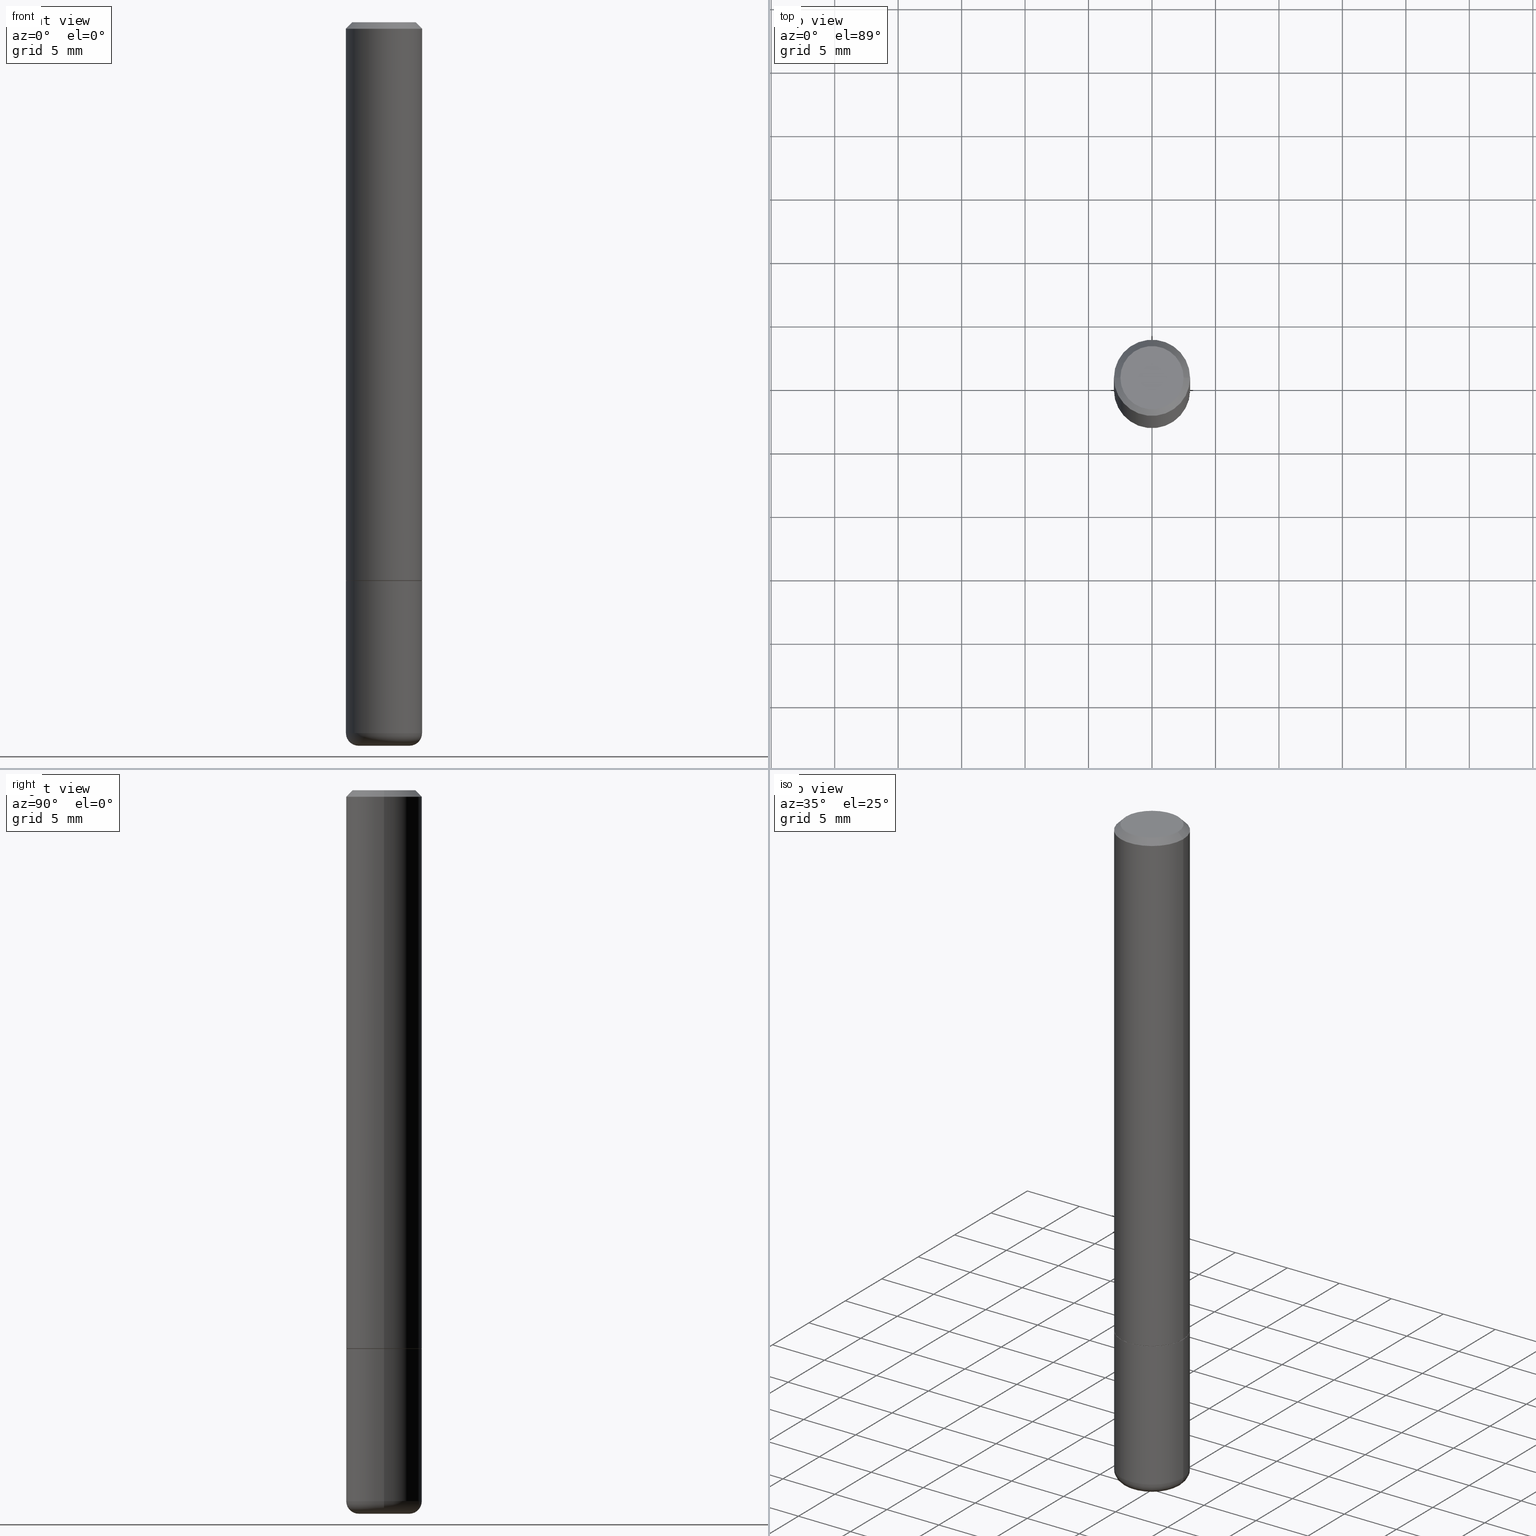
[diagram: canonical four-view strip — front | top / right | iso, engineering-drawing reading convention]
A machine part, canonical four-view strip (front | top / right | iso — engineering-drawing reading convention). The complete STEP part file that produces these views, byte-faithful:
ISO-10303-21;
HEADER;
FILE_DESCRIPTION (( 'STEP AP203' ),
    '1' );
FILE_NAME ('48002.STEP',
    '2024-03-06T19:44:19',
    ( '' ),
    ( '' ),
    'SwSTEP 2.0',
    'SolidWorks 2023',
    '' );
FILE_SCHEMA (( 'CONFIG_CONTROL_DESIGN' ));
ENDSEC;

DATA;
#1 = DIRECTION ( 'NONE',  ( 1.000000000000000000, -6.982962677686264344E-15, 0.000000000000000000 ) ) ;
#2 = ORIENTED_EDGE ( 'NONE', *, *, #193, .F. ) ;
#3 = EDGE_CURVE ( 'NONE', #345, #130, #348, .T. ) ;
#4 = PLANE ( 'NONE',  #411 ) ;
#5 = LINE ( 'NONE', #175, #372 ) ;
#6 = CARTESIAN_POINT ( 'NONE',  ( 4.890937612370292426E-31, -6.982962677686317493E-17, -0.02000000000000007674 ) ) ;
#7 = VERTEX_POINT ( 'NONE', #319 ) ;
#8 = PERSON_AND_ORGANIZATION_ROLE ( 'design_owner' ) ;
#9 = DIRECTION ( 'NONE',  ( -2.445468806185136597E-29, 3.491481338843145583E-15, 1.000000000000000000 ) ) ;
#10 = DIRECTION ( 'NONE',  ( -2.445468806185136597E-29, 3.491481338843145583E-15, 1.000000000000000000 ) ) ;
#11 = ORIENTED_EDGE ( 'NONE', *, *, #136, .F. ) ;
#12 = DATE_AND_TIME ( #93, #203 ) ;
#13 = LINE ( 'NONE', #300, #256 ) ;
#14 = ORIENTED_EDGE ( 'NONE', *, *, #84, .T. ) ;
#15 = DATE_AND_TIME ( #405, #176 ) ;
#16 = PERSON_AND_ORGANIZATION ( #274, #335 ) ;
#17 = DATE_AND_TIME ( #147, #407 ) ;
#18 = MANIFOLD_SOLID_BREP ( 'Body-Move/Copy2[1]', #77 ) ;
#19 = AXIS2_PLACEMENT_3D ( 'NONE', #389, #297, #129 ) ;
#20 = EDGE_CURVE ( 'NONE', #294, #107, #399, .T. ) ;
#21 = EDGE_CURVE ( 'NONE', #23, #294, #33, .T. ) ;
#22 = PERSON_AND_ORGANIZATION ( #274, #335 ) ;
#23 = VERTEX_POINT ( 'NONE', #414 ) ;
#24 = CIRCLE ( 'NONE', #238, 0.1181000000000002742 ) ;
#25 = AXIS2_PLACEMENT_3D ( 'NONE', #271, #197, #142 ) ;
#26 = DIRECTION ( 'NONE',  ( -2.445468806185136597E-29, 3.491481338843145583E-15, 1.000000000000000000 ) ) ;
#27 = PLANE ( 'NONE',  #55 ) ;
#28 = VECTOR ( 'NONE', #394, 39.37007874015748143 ) ;
#29 = VERTEX_POINT ( 'NONE', #253 ) ;
#30 = ADVANCED_FACE ( 'NONE', ( #54 ), #149, .T. ) ;
#31 = CARTESIAN_POINT ( 'NONE',  ( -0.1181000000000000383, 7.548582654578851616E-16, -0.02000000000000007674 ) ) ;
#32 = FACE_OUTER_BOUND ( 'NONE', #62, .T. ) ;
#33 = LINE ( 'NONE', #352, #280 ) ;
#34 = ORIENTED_EDGE ( 'NONE', *, *, #276, .F. ) ;
#35 = CARTESIAN_POINT ( 'NONE',  ( 0.1170999999999999958, -6.865998052835041749E-15, -1.732299999999999729 ) ) ;
#36 = CARTESIAN_POINT ( 'NONE',  ( -0.1180999999999999966, -6.033830044580054299E-15, -1.732299999999999951 ) ) ;
#37 = DIRECTION ( 'NONE',  ( 1.000000000000000000, -6.982962677686266711E-15, 0.000000000000000000 ) ) ;
#38 = ORIENTED_EDGE ( 'NONE', *, *, #222, .F. ) ;
#39 = CARTESIAN_POINT ( 'NONE',  ( 0.000000000000000000, 0.000000000000000000, 0.000000000000000000 ) ) ;
#40 = CARTESIAN_POINT ( 'NONE',  ( 5.391525076996371277E-29, -7.697668907747483125E-15, -2.204700000000000326 ) ) ;
#41 = DIRECTION ( 'NONE',  ( 1.000000000000000000, -6.982962677686264344E-15, 0.000000000000000000 ) ) ;
#42 = ADVANCED_BREP_SHAPE_REPRESENTATION ( '48002', ( #18, #207, #116 ), #151 ) ;
#43 = DESIGN_CONTEXT ( 'detailed design', #224, 'design' ) ;
#44 = ORIENTED_EDGE ( 'NONE', *, *, #408, .F. ) ;
#45 = ORIENTED_EDGE ( 'NONE', *, *, #314, .F. ) ;
#46 = APPLICATION_PROTOCOL_DEFINITION ( 'international standard', 'config_control_design', 1994, #83 ) ;
#47 = CARTESIAN_POINT ( 'NONE',  ( -0.1180999999999998995, -6.858517936814806506E-15, -2.204700000000000326 ) ) ;
#48 = EDGE_LOOP ( 'NONE', ( #183, #161 ) ) ;
#49 = EDGE_CURVE ( 'NONE', #107, #294, #24, .T. ) ;
#50 = ORIENTED_EDGE ( 'NONE', *, *, #343, .F. ) ;
#51 = APPROVAL ( #111, 'UNSPECIFIED' ) ;
#52 = COORDINATED_UNIVERSAL_TIME_OFFSET ( 5, 0, .BEHIND. ) ;
#53 = AXIS2_PLACEMENT_3D ( 'NONE', #66, #367, #99 ) ;
#54 = FACE_OUTER_BOUND ( 'NONE', #143, .T. ) ;
#55 = AXIS2_PLACEMENT_3D ( 'NONE', #379, #158, #88 ) ;
#56 = CARTESIAN_POINT ( 'NONE',  ( -0.1181000000000000383, 7.548582654578851616E-16, -0.02000000000000007674 ) ) ;
#57 = CC_DESIGN_PERSON_AND_ORGANIZATION_ASSIGNMENT ( #386, #8, ( #241 ) ) ;
#58 = ORIENTED_EDGE ( 'NONE', *, *, #213, .F. ) ;
#59 = AXIS2_PLACEMENT_3D ( 'NONE', #227, #71, #196 ) ;
#60 = LINE ( 'NONE', #404, #275 ) ;
#61 = DIRECTION ( 'NONE',  ( 1.000000000000000000, -6.982962677686265133E-15, 0.000000000000000000 ) ) ;
#62 = EDGE_LOOP ( 'NONE', ( #390, #249, #316, #11 ) ) ;
#63 = EDGE_CURVE ( 'NONE', #370, #336, #202, .T. ) ;
#64 = LENGTH_MEASURE_WITH_UNIT ( LENGTH_MEASURE( 0.02539999999999999897 ), #122 );
#65 = CARTESIAN_POINT ( 'NONE',  ( 0.000000000000000000, 0.000000000000000000, 0.000000000000000000 ) ) ;
#66 = CARTESIAN_POINT ( 'NONE',  ( 6.850286386810210746E-16, 0.09809999999999977072, -2.251302258627504304E-16 ) ) ;
#67 = CC_DESIGN_APPROVAL ( #252, ( #403 ) ) ;
#68 = CARTESIAN_POINT ( 'NONE',  ( 4.236285612954512392E-29, -6.048293123277981078E-15, -1.732299999999999951 ) ) ;
#69 = DIRECTION ( 'NONE',  ( 1.000000000000000000, -6.982962677686266711E-15, 4.884890577880259924E-29 ) ) ;
#70 = FACE_OUTER_BOUND ( 'NONE', #159, .T. ) ;
#71 = DIRECTION ( 'NONE',  ( -2.445468806185136597E-29, 3.491481338843145583E-15, 1.000000000000000000 ) ) ;
#72 = CARTESIAN_POINT ( 'NONE',  ( 5.487876547960064752E-29, -7.835233272497900762E-15, -2.244099999999999540 ) ) ;
#73 = EDGE_LOOP ( 'NONE', ( #186, #306, #45, #195 ) ) ;
#74 = CIRCLE ( 'NONE', #392, 0.1170999999999999958 ) ;
#75 = EDGE_CURVE ( 'NONE', #130, #29, #378, .T. ) ;
#76 = APPROVAL_ROLE ( '' ) ;
#77 = CLOSED_SHELL ( 'NONE', ( #168, #272, #104, #413, #283, #380 ) ) ;
#78 = CIRCLE ( 'NONE', #59, 0.07870000000000000606 ) ;
#79 = CARTESIAN_POINT ( 'NONE',  ( 4.236285612954511832E-29, -6.048293123277980289E-15, -1.732299999999999729 ) ) ;
#80 = APPROVAL ( #402, 'UNSPECIFIED' ) ;
#81 = CIRCLE ( 'NONE', #217, 0.1181000000000000383 ) ;
#82 = ORIENTED_EDGE ( 'NONE', *, *, #311, .F. ) ;
#83 = APPLICATION_CONTEXT ( 'configuration controlled 3d designs of mechanical parts and assemblies' ) ;
#84 = EDGE_CURVE ( 'NONE', #345, #89, #220, .T. ) ;
#85 = CARTESIAN_POINT ( 'NONE',  ( 0.1181000000000000383, -8.800544403136813305E-16, -0.02000000000000007674 ) ) ;
#86 = ORIENTED_EDGE ( 'NONE', *, *, #136, .T. ) ;
#87 = ORIENTED_EDGE ( 'NONE', *, *, #177, .F. ) ;
#88 = DIRECTION ( 'NONE',  ( -1.000000000000000000, 6.982962677686265922E-15, -4.876176775795935793E-29 ) ) ;
#89 = VERTEX_POINT ( 'NONE', #31 ) ;
#90 = CARTESIAN_POINT ( 'NONE',  ( 0.1180999999999998995, -8.522356799982231388E-15, -2.204700000000000326 ) ) ;
#91 = CARTESIAN_POINT ( 'NONE',  ( 5.391525076996371277E-29, -7.697668907747483125E-15, -2.204700000000000326 ) ) ;
#92 = ORIENTED_EDGE ( 'NONE', *, *, #84, .F. ) ;
#93 = CALENDAR_DATE ( 2024, 6, 3 ) ;
#94 = DIRECTION ( 'NONE',  ( 2.445468806185136597E-29, -3.491481338843145583E-15, -1.000000000000000000 ) ) ;
#95 = DIRECTION ( 'NONE',  ( -1.000000000000000000, 6.982962677686266711E-15, 0.000000000000000000 ) ) ;
#96 = EDGE_LOOP ( 'NONE', ( #44, #139 ) ) ;
#97 = COORDINATED_UNIVERSAL_TIME_OFFSET ( 5, 0, .BEHIND. ) ;
#98 = DIRECTION ( 'NONE',  ( -2.445468806185136597E-29, 3.491481338843145583E-15, 1.000000000000000000 ) ) ;
#99 = DIRECTION ( 'NONE',  ( -1.000000000000000000, 6.982962677686265922E-15, -4.876176775795935793E-29 ) ) ;
#100 = CIRCLE ( 'NONE', #214, 0.03939999999999978936 ) ;
#101 = PRODUCT_DEFINITION_FORMATION_WITH_SPECIFIED_SOURCE ( 'ANY', '', #241, .NOT_KNOWN. ) ;
#102 = FACE_OUTER_BOUND ( 'NONE', #215, .T. ) ;
#103 = DIRECTION ( 'NONE',  ( 1.000000000000000000, -6.982962677686265133E-15, 0.000000000000000000 ) ) ;
#104 = ADVANCED_FACE ( 'NONE', ( #315 ), #27, .F. ) ;
#105 = ORIENTED_EDGE ( 'NONE', *, *, #337, .T. ) ;
#106 =( CONVERSION_BASED_UNIT ( 'INCH', #64 ) LENGTH_UNIT ( ) NAMED_UNIT ( #123 ) );
#107 = VERTEX_POINT ( 'NONE', #286 ) ;
#108 = SHAPE_DEFINITION_REPRESENTATION ( #212, #42 ) ;
#109 = CIRCLE ( 'NONE', #19, 0.1180999999999999966 ) ;
#110 = EDGE_CURVE ( 'NONE', #294, #89, #60, .T. ) ;
#111 = APPROVAL_STATUS ( 'not_yet_approved' ) ;
#112 = AXIS2_PLACEMENT_3D ( 'NONE', #254, #200, #396 ) ;
#113 = EDGE_CURVE ( 'NONE', #23, #383, #74, .T. ) ;
#114 = CC_DESIGN_DATE_AND_TIME_ASSIGNMENT ( #244, #205, ( #403 ) ) ;
#115 = DIRECTION ( 'NONE',  ( -2.445468806185136597E-29, 3.491481338843145583E-15, 1.000000000000000000 ) ) ;
#116 = AXIS2_PLACEMENT_3D ( 'NONE', #39, #171, #299 ) ;
#117 = DIRECTION ( 'NONE',  ( -2.445468806185136597E-29, 3.491481338843145583E-15, 1.000000000000000000 ) ) ;
#118 = EDGE_CURVE ( 'NONE', #7, #262, #230, .T. ) ;
#119 = DIRECTION ( 'NONE',  ( -1.000000000000000000, 7.105427357600989237E-15, 0.000000000000000000 ) ) ;
#120 = EDGE_LOOP ( 'NONE', ( #82, #347, #169, #2 ) ) ;
#121 = CARTESIAN_POINT ( 'NONE',  ( -5.741182778843708482E-45, 8.196887437092460066E-31, 2.347681869555226296E-16 ) ) ;
#122 =( LENGTH_UNIT ( ) NAMED_UNIT ( * ) SI_UNIT ( $, .METRE. ) );
#123 = DIMENSIONAL_EXPONENTS ( 1.000000000000000000, 0.000000000000000000, 0.000000000000000000, 0.000000000000000000, 0.000000000000000000, 0.000000000000000000, 0.000000000000000000 ) ;
#124 = DIRECTION ( 'NONE',  ( -2.445468806185136597E-29, 3.491481338843145583E-15, 1.000000000000000000 ) ) ;
#125 = AXIS2_PLACEMENT_3D ( 'NONE', #354, #384, #69 ) ;
#126 = ORIENTED_EDGE ( 'NONE', *, *, #21, .T. ) ;
#127 = APPROVAL_STATUS ( 'not_yet_approved' ) ;
#128 = CARTESIAN_POINT ( 'NONE',  ( 0.000000000000000000, 0.000000000000000000, 0.000000000000000000 ) ) ;
#129 = DIRECTION ( 'NONE',  ( 1.000000000000000000, -6.982962677686265133E-15, 0.000000000000000000 ) ) ;
#130 = VERTEX_POINT ( 'NONE', #225 ) ;
#131 =( NAMED_UNIT ( * ) SI_UNIT ( $, .STERADIAN. ) SOLID_ANGLE_UNIT ( ) );
#132 = CARTESIAN_POINT ( 'NONE',  ( 5.391525076996371277E-29, -7.697668907747483125E-15, -2.204700000000000326 ) ) ;
#133 = DIRECTION ( 'NONE',  ( -6.982962677686266711E-15, -1.000000000000000000, 3.491481338843145583E-15 ) ) ;
#134 = ORIENTED_EDGE ( 'NONE', *, *, #3, .T. ) ;
#135 = DIRECTION ( 'NONE',  ( -2.438088387897960049E-29, 3.491481338843145188E-15, 1.000000000000000000 ) ) ;
#136 = EDGE_CURVE ( 'NONE', #89, #29, #81, .T. ) ;
#137 = CARTESIAN_POINT ( 'NONE',  ( -0.09809999999999977072, 7.199434520694536111E-16, 2.347681869555176992E-16 ) ) ;
#138 = CARTESIAN_POINT ( 'NONE',  ( 0.000000000000000000, 0.000000000000000000, 0.000000000000000000 ) ) ;
#139 = ORIENTED_EDGE ( 'NONE', *, *, #337, .F. ) ;
#140 = AXIS2_PLACEMENT_3D ( 'NONE', #65, #388, #201 ) ;
#141 = FACE_OUTER_BOUND ( 'NONE', #96, .T. ) ;
#142 = DIRECTION ( 'NONE',  ( 1.000000000000000000, -6.982962677686266711E-15, 0.000000000000000000 ) ) ;
#143 = EDGE_LOOP ( 'NONE', ( #328, #126, #273, #34 ) ) ;
#144 = APPROVAL_ROLE ( '' ) ;
#145 = SECURITY_CLASSIFICATION_LEVEL ( 'unclassified' ) ;
#146 = CIRCLE ( 'NONE', #179, 0.1180999999999999966 ) ;
#147 = CALENDAR_DATE ( 2024, 6, 3 ) ;
#148 = PERSON_AND_ORGANIZATION_ROLE ( 'classification_officer' ) ;
#149 = CONICAL_SURFACE ( 'NONE', #381, 0.1170999999999999958, 0.7853981633976873100 ) ;
#150 = APPROVAL_PERSON_ORGANIZATION ( #321, #252, #259 ) ;
#151 =( GEOMETRIC_REPRESENTATION_CONTEXT ( 3 ) GLOBAL_UNCERTAINTY_ASSIGNED_CONTEXT ( ( #320 ) ) GLOBAL_UNIT_ASSIGNED_CONTEXT ( ( #106, #325, #131 ) ) REPRESENTATION_CONTEXT ( 'NONE', 'WORKASPACE' ) );
#152 = ADVANCED_FACE ( 'NONE', ( #70 ), #198, .F. ) ;
#153 = ORIENTED_EDGE ( 'NONE', *, *, #118, .F. ) ;
#154 = CARTESIAN_POINT ( 'NONE',  ( 4.233840144148326789E-29, -6.044801641939137282E-15, -1.731299999999999839 ) ) ;
#155 = DIRECTION ( 'NONE',  ( 7.105427357601001859E-15, 1.000000000000000000, -3.491481338843145583E-15 ) ) ;
#156 = AXIS2_PLACEMENT_3D ( 'NONE', #292, #133, #37 ) ;
#157 = EDGE_LOOP ( 'NONE', ( #58, #105, #298, #50 ) ) ;
#158 = DIRECTION ( 'NONE',  ( 2.438088387897960049E-29, -3.491481338843145188E-15, -1.000000000000000000 ) ) ;
#159 = EDGE_LOOP ( 'NONE', ( #134, #368 ) ) ;
#160 = EDGE_CURVE ( 'NONE', #383, #23, #184, .T. ) ;
#161 = ORIENTED_EDGE ( 'NONE', *, *, #113, .F. ) ;
#162 = DIRECTION ( 'NONE',  ( 2.438088387897960049E-29, -3.491481338843145188E-15, -1.000000000000000000 ) ) ;
#163 = CYLINDRICAL_SURFACE ( 'NONE', #165, 0.1181000000000001493 ) ;
#164 = DIRECTION ( 'NONE',  ( -2.445468806185136597E-29, 3.491481338843145583E-15, 1.000000000000000000 ) ) ;
#165 = AXIS2_PLACEMENT_3D ( 'NONE', #128, #115, #295 ) ;
#166 = DIRECTION ( 'NONE',  ( 0.7071067811867165487, -2.468850131084027659E-15, 0.7071067811863784858 ) ) ;
#167 = LINE ( 'NONE', #327, #28 ) ;
#168 = ADVANCED_FACE ( 'NONE', ( #173 ), #229, .T. ) ;
#169 = ORIENTED_EDGE ( 'NONE', *, *, #170, .T. ) ;
#170 = EDGE_CURVE ( 'NONE', #370, #7, #167, .T. ) ;
#171 = DIRECTION ( 'NONE',  ( 0.000000000000000000, 0.000000000000000000, 1.000000000000000000 ) ) ;
#172 = CARTESIAN_POINT ( 'NONE',  ( 0.1170999999999999958, -6.865998052835041749E-15, -1.732299999999999729 ) ) ;
#173 = FACE_OUTER_BOUND ( 'NONE', #289, .T. ) ;
#174 = APPLICATION_PROTOCOL_DEFINITION ( 'international standard', 'config_control_design', 1994, #224 ) ;
#175 = CARTESIAN_POINT ( 'NONE',  ( -0.1180999999999999966, 8.391509709326782957E-16, -5.809262341591043784E-30 ) ) ;
#176 = LOCAL_TIME ( 14, 44, 19.00000000000000000, #309 ) ;
#177 = EDGE_CURVE ( 'NONE', #282, #370, #290, .T. ) ;
#178 = PERSON_AND_ORGANIZATION ( #274, #335 ) ;
#179 = AXIS2_PLACEMENT_3D ( 'NONE', #40, #9, #61 ) ;
#180 = CC_DESIGN_DATE_AND_TIME_ASSIGNMENT ( #277, #401, ( #248 ) ) ;
#181 = DIRECTION ( 'NONE',  ( 1.000000000000000000, -6.982962677686264344E-15, 0.000000000000000000 ) ) ;
#182 = CLOSED_SHELL ( 'NONE', ( #30, #243, #209, #293, #363, #391, #374, #152 ) ) ;
#183 = ORIENTED_EDGE ( 'NONE', *, *, #160, .F. ) ;
#184 = CIRCLE ( 'NONE', #281, 0.1170999999999999958 ) ;
#185 = CARTESIAN_POINT ( 'NONE',  ( 4.236285612954511832E-29, -6.048293123277980289E-15, -1.732299999999999729 ) ) ;
#186 = ORIENTED_EDGE ( 'NONE', *, *, #49, .T. ) ;
#187 = DIRECTION ( 'NONE',  ( -1.000000000000000000, 6.982962677686265922E-15, -4.876176775795935793E-29 ) ) ;
#188 = DIRECTION ( 'NONE',  ( -2.445468806185136597E-29, 3.491481338843145583E-15, 1.000000000000000000 ) ) ;
#189 = DIRECTION ( 'NONE',  ( 0.7071067811865466846, -7.319954787623252890E-15, -0.7071067811865483499 ) ) ;
#190 = PERSON_AND_ORGANIZATION_ROLE ( 'creator' ) ;
#191 = CARTESIAN_POINT ( 'NONE',  ( -0.07870000000000000606, -7.067277038134755422E-15, -2.244099999999999540 ) ) ;
#192 = DIRECTION ( 'NONE',  ( 1.000000000000000000, -6.982962677686266711E-15, 4.876176775795936353E-29 ) ) ;
#193 = EDGE_CURVE ( 'NONE', #262, #7, #109, .T. ) ;
#194 = AXIS2_PLACEMENT_3D ( 'NONE', #270, #162, #187 ) ;
#195 = ORIENTED_EDGE ( 'NONE', *, *, #340, .F. ) ;
#196 = DIRECTION ( 'NONE',  ( 1.000000000000000000, -6.982962677686269077E-15, 0.000000000000000000 ) ) ;
#197 = DIRECTION ( 'NONE',  ( -2.445468806185136597E-29, 3.491481338843145583E-15, 1.000000000000000000 ) ) ;
#198 = PLANE ( 'NONE',  #53 ) ;
#199 = EDGE_LOOP ( 'NONE', ( #38, #269, #288, #92 ) ) ;
#200 = DIRECTION ( 'NONE',  ( -2.445468806185136597E-29, 3.491481338843145583E-15, 1.000000000000000000 ) ) ;
#201 = DIRECTION ( 'NONE',  ( 1.000000000000000000, -6.982962677686266711E-15, 4.876176775795936353E-29 ) ) ;
#202 = CIRCLE ( 'NONE', #255, 0.1180999999999999966 ) ;
#203 = LOCAL_TIME ( 14, 44, 19.00000000000000000, #97 ) ;
#204 = CC_DESIGN_SECURITY_CLASSIFICATION ( #248, ( #101 ) ) ;
#205 = DATE_TIME_ROLE ( 'creation_date' ) ;
#206 = CALENDAR_DATE ( 2024, 6, 3 ) ;
#207 = MANIFOLD_SOLID_BREP ( 'Body-Move/Copy2[2]', #182 ) ;
#208 = PERSON_AND_ORGANIZATION_ROLE ( 'creator' ) ;
#209 = ADVANCED_FACE ( 'NONE', ( #261 ), #326, .T. ) ;
#210 = CIRCLE ( 'NONE', #125, 0.09809999999999977072 ) ;
#211 = DIRECTION ( 'NONE',  ( -2.445468806185136597E-29, 3.491481338843145583E-15, 1.000000000000000000 ) ) ;
#212 = PRODUCT_DEFINITION_SHAPE ( 'NONE', 'NONE',  #403 ) ;
#213 = EDGE_CURVE ( 'NONE', #219, #336, #100, .T. ) ;
#214 = AXIS2_PLACEMENT_3D ( 'NONE', #344, #155, #119 ) ;
#215 = EDGE_LOOP ( 'NONE', ( #324, #226, #397, #87 ) ) ;
#216 = ORIENTED_EDGE ( 'NONE', *, *, #63, .T. ) ;
#217 = AXIS2_PLACEMENT_3D ( 'NONE', #331, #355, #234 ) ;
#218 = DIRECTION ( 'NONE',  ( -0.7071067811865466846, 2.468850131082247989E-15, -0.7071067811865483499 ) ) ;
#219 = VERTEX_POINT ( 'NONE', #191 ) ;
#220 = LINE ( 'NONE', #56, #371 ) ;
#221 = APPROVAL_DATE_TIME ( #12, #252 ) ;
#222 = EDGE_CURVE ( 'NONE', #130, #345, #210, .T. ) ;
#223 = DIRECTION ( 'NONE',  ( 1.000000000000000000, -6.982962677686269077E-15, 0.000000000000000000 ) ) ;
#224 = APPLICATION_CONTEXT ( 'configuration controlled 3d designs of mechanical parts and assemblies' ) ;
#225 = CARTESIAN_POINT ( 'NONE',  ( 0.09809999999999977072, -7.765346469475330681E-16, 2.347681869555277079E-16 ) ) ;
#226 = ORIENTED_EDGE ( 'NONE', *, *, #213, .T. ) ;
#227 = CARTESIAN_POINT ( 'NONE',  ( 5.487876547960064752E-29, -7.835233272497900762E-15, -2.244099999999999540 ) ) ;
#228 = DIRECTION ( 'NONE',  ( 1.000000000000000000, -6.982962677686268288E-15, 4.883557194083112901E-29 ) ) ;
#229 = CYLINDRICAL_SURFACE ( 'NONE', #313, 0.1180999999999999966 ) ;
#230 = CIRCLE ( 'NONE', #359, 0.1180999999999999966 ) ;
#231 = ORIENTED_EDGE ( 'NONE', *, *, #20, .F. ) ;
#232 = PLANE ( 'NONE',  #194 ) ;
#233 = DIRECTION ( 'NONE',  ( 1.000000000000000000, -6.982962677686268288E-15, 4.883557194083112901E-29 ) ) ;
#234 = DIRECTION ( 'NONE',  ( 1.000000000000000000, -6.982962677686266711E-15, 0.000000000000000000 ) ) ;
#235 = EDGE_LOOP ( 'NONE', ( #364, #410, #356, #231 ) ) ;
#236 = ORIENTED_EDGE ( 'NONE', *, *, #75, .F. ) ;
#237 = CC_DESIGN_PERSON_AND_ORGANIZATION_ASSIGNMENT ( #353, #190, ( #403 ) ) ;
#238 = AXIS2_PLACEMENT_3D ( 'NONE', #154, #164, #318 ) ;
#239 = CIRCLE ( 'NONE', #406, 0.07870000000000000606 ) ;
#240 = LOCAL_TIME ( 14, 44, 19.00000000000000000, #279 ) ;
#241 = PRODUCT ( '48002', '48002', '', ( #329 ) ) ;
#242 = APPROVAL_DATE_TIME ( #15, #80 ) ;
#243 = ADVANCED_FACE ( 'NONE', ( #266 ), #393, .T. ) ;
#244 = DATE_AND_TIME ( #206, #418 ) ;
#245 = DIRECTION ( 'NONE',  ( 1.000000000000000000, -6.982962677686266711E-15, 4.884890577880259924E-29 ) ) ;
#246 = CALENDAR_DATE ( 2024, 6, 3 ) ;
#247 = AXIS2_PLACEMENT_3D ( 'NONE', #132, #98, #228 ) ;
#248 = SECURITY_CLASSIFICATION ( '', '', #145 ) ;
#249 = ORIENTED_EDGE ( 'NONE', *, *, #20, .T. ) ;
#250 = AXIS2_PLACEMENT_3D ( 'NONE', #369, #287, #415 ) ;
#251 = DIRECTION ( 'NONE',  ( 1.000000000000000000, -6.982962677686265133E-15, 0.000000000000000000 ) ) ;
#252 = APPROVAL ( #127, 'UNSPECIFIED' ) ;
#253 = CARTESIAN_POINT ( 'NONE',  ( 0.1181000000000000383, -8.800544403136813305E-16, -0.02000000000000007674 ) ) ;
#254 = CARTESIAN_POINT ( 'NONE',  ( 0.000000000000000000, 0.000000000000000000, 0.000000000000000000 ) ) ;
#255 = AXIS2_PLACEMENT_3D ( 'NONE', #91, #117, #251 ) ;
#256 = VECTOR ( 'NONE', #351, 39.37007874015748143 ) ;
#257 = APPROVAL_PERSON_ORGANIZATION ( #22, #51, #76 ) ;
#258 = DIRECTION ( 'NONE',  ( 1.000000000000000000, -6.982962677686264344E-15, 0.000000000000000000 ) ) ;
#259 = APPROVAL_ROLE ( '' ) ;
#260 = DIRECTION ( 'NONE',  ( -2.445468806185136877E-29, 3.491481338843145188E-15, 1.000000000000000000 ) ) ;
#261 = FACE_OUTER_BOUND ( 'NONE', #199, .T. ) ;
#262 = VERTEX_POINT ( 'NONE', #36 ) ;
#263 = LINE ( 'NONE', #172, #284 ) ;
#264 = DIRECTION ( 'NONE',  ( -2.445468806185136597E-29, 3.491481338843145583E-15, 1.000000000000000000 ) ) ;
#265 = DIRECTION ( 'NONE',  ( 1.000000000000000000, -6.982962677686265922E-15, 4.876176775795935793E-29 ) ) ;
#266 = FACE_OUTER_BOUND ( 'NONE', #73, .T. ) ;
#267 = DIRECTION ( 'NONE',  ( -2.445468806185136597E-29, 3.491481338843145583E-15, 1.000000000000000000 ) ) ;
#268 = CONICAL_SURFACE ( 'NONE', #250, 0.1170999999999999958, 0.7853981633976873100 ) ;
#269 = ORIENTED_EDGE ( 'NONE', *, *, #75, .T. ) ;
#270 = CARTESIAN_POINT ( 'NONE',  ( 1.092743596228402814E-28, -4.547459069107378307E-17, -2.244099999999999540 ) ) ;
#271 = CARTESIAN_POINT ( 'NONE',  ( 4.890937612370292426E-31, -6.982962677686317493E-17, -0.02000000000000007674 ) ) ;
#272 = ADVANCED_FACE ( 'NONE', ( #102 ), #375, .T. ) ;
#273 = ORIENTED_EDGE ( 'NONE', *, *, #49, .F. ) ;
#274 = PERSON ( 'UNSPECIFIED', 'UNSPECIFIED', 'UNSPECIFIED', ('UNSPECIFIED'), ('UNSPECIFIED'), ('UNSPECIFIED') ) ;
#275 = VECTOR ( 'NONE', #323, 39.37007874015748143 ) ;
#276 = EDGE_CURVE ( 'NONE', #383, #107, #263, .T. ) ;
#277 = DATE_AND_TIME ( #246, #240 ) ;
#278 = PERSON_AND_ORGANIZATION ( #274, #335 ) ;
#279 = COORDINATED_UNIVERSAL_TIME_OFFSET ( 5, 0, .BEHIND. ) ;
#280 = VECTOR ( 'NONE', #346, 39.37007874015748143 ) ;
#281 = AXIS2_PLACEMENT_3D ( 'NONE', #362, #264, #41 ) ;
#282 = VERTEX_POINT ( 'NONE', #291 ) ;
#283 = ADVANCED_FACE ( 'NONE', ( #296 ), #317, .T. ) ;
#284 = VECTOR ( 'NONE', #166, 39.37007874015748143 ) ;
#285 = EDGE_LOOP ( 'NONE', ( #412, #395 ) ) ;
#286 = CARTESIAN_POINT ( 'NONE',  ( 0.1181000000000002742, -6.869489534173887122E-15, -1.731299999999999839 ) ) ;
#287 = DIRECTION ( 'NONE',  ( -2.445468806185136597E-29, 3.491481338843145583E-15, 1.000000000000000000 ) ) ;
#288 = ORIENTED_EDGE ( 'NONE', *, *, #314, .T. ) ;
#289 = EDGE_LOOP ( 'NONE', ( #216, #416, #153, #409 ) ) ;
#290 = CIRCLE ( 'NONE', #156, 0.03939999999999978936 ) ;
#291 = CARTESIAN_POINT ( 'NONE',  ( 0.07870000000000000606, -8.384792435231810596E-15, -2.244099999999999540 ) ) ;
#292 = CARTESIAN_POINT ( 'NONE',  ( 0.07870000000000000606, -8.247228070481392959E-15, -2.204700000000000326 ) ) ;
#293 = ADVANCED_FACE ( 'NONE', ( #322 ), #342, .T. ) ;
#294 = VERTEX_POINT ( 'NONE', #360 ) ;
#295 = DIRECTION ( 'NONE',  ( 1.000000000000000000, -6.982962677686266711E-15, 4.876176775795936353E-29 ) ) ;
#296 = FACE_OUTER_BOUND ( 'NONE', #157, .T. ) ;
#297 = DIRECTION ( 'NONE',  ( -2.445468806185136597E-29, 3.491481338843145583E-15, 1.000000000000000000 ) ) ;
#298 = ORIENTED_EDGE ( 'NONE', *, *, #177, .T. ) ;
#299 = DIRECTION ( 'NONE',  ( 1.000000000000000000, 0.000000000000000000, 0.000000000000000000 ) ) ;
#300 = CARTESIAN_POINT ( 'NONE',  ( 0.1181000000000001493, -8.246878922347491501E-16, 5.758764772215008148E-30 ) ) ;
#301 = CARTESIAN_POINT ( 'NONE',  ( 4.236285612954512392E-29, -6.048293123277981078E-15, -1.732299999999999951 ) ) ;
#302 = CYLINDRICAL_SURFACE ( 'NONE', #112, 0.1180999999999999966 ) ;
#303 = PRODUCT_RELATED_PRODUCT_CATEGORY ( 'detail', '', ( #241 ) ) ;
#304 = DIRECTION ( 'NONE',  ( -2.445468806185136597E-29, 3.491481338843145583E-15, 1.000000000000000000 ) ) ;
#305 = CC_DESIGN_APPROVAL ( #80, ( #248 ) ) ;
#306 = ORIENTED_EDGE ( 'NONE', *, *, #110, .T. ) ;
#307 = COORDINATED_UNIVERSAL_TIME_OFFSET ( 5, 0, .BEHIND. ) ;
#308 = AXIS2_PLACEMENT_3D ( 'NONE', #330, #94, #334 ) ;
#309 = COORDINATED_UNIVERSAL_TIME_OFFSET ( 5, 0, .BEHIND. ) ;
#310 = CARTESIAN_POINT ( 'NONE',  ( 4.233840144148326789E-29, -6.044801641939137282E-15, -1.731299999999999839 ) ) ;
#311 = EDGE_CURVE ( 'NONE', #336, #262, #5, .T. ) ;
#312 = VECTOR ( 'NONE', #189, 39.37007874015748143 ) ;
#313 = AXIS2_PLACEMENT_3D ( 'NONE', #138, #267, #192 ) ;
#314 = EDGE_CURVE ( 'NONE', #29, #89, #417, .T. ) ;
#315 = FACE_OUTER_BOUND ( 'NONE', #285, .T. ) ;
#316 = ORIENTED_EDGE ( 'NONE', *, *, #340, .T. ) ;
#317 = TOROIDAL_SURFACE ( 'NONE', #247, 0.07870000000000000606, 0.03939999999999978936 ) ;
#318 = DIRECTION ( 'NONE',  ( 1.000000000000000000, -6.982962677686264344E-15, 0.000000000000000000 ) ) ;
#319 = CARTESIAN_POINT ( 'NONE',  ( 0.1180999999999999966, -6.872981015512729341E-15, -1.732299999999999951 ) ) ;
#320 = UNCERTAINTY_MEASURE_WITH_UNIT (LENGTH_MEASURE( 1.000000000000000082E-05 ), #106, 'distance_accuracy_value', 'NONE');
#321 = PERSON_AND_ORGANIZATION ( #274, #335 ) ;
#322 = FACE_OUTER_BOUND ( 'NONE', #332, .T. ) ;
#323 = DIRECTION ( 'NONE',  ( -2.445468806185136877E-29, 3.491481338843145188E-15, 1.000000000000000000 ) ) ;
#324 = ORIENTED_EDGE ( 'NONE', *, *, #408, .T. ) ;
#325 =( NAMED_UNIT ( * ) PLANE_ANGLE_UNIT ( ) SI_UNIT ( $, .RADIAN. ) );
#326 = CONICAL_SURFACE ( 'NONE', #400, 0.1181000000000000383, 0.7853981633974471688 ) ;
#327 = CARTESIAN_POINT ( 'NONE',  ( 0.1180999999999999966, -8.246878922347480654E-16, 5.758764772215000440E-30 ) ) ;
#328 = ORIENTED_EDGE ( 'NONE', *, *, #160, .T. ) ;
#329 = MECHANICAL_CONTEXT ( 'NONE', #83, 'mechanical' ) ;
#330 = CARTESIAN_POINT ( 'NONE',  ( 4.890937612370292426E-31, -6.982962677686317493E-17, -0.02000000000000007674 ) ) ;
#331 = CARTESIAN_POINT ( 'NONE',  ( 4.890937612370292426E-31, -6.982962677686317493E-17, -0.02000000000000007674 ) ) ;
#332 = EDGE_LOOP ( 'NONE', ( #236, #377, #14, #86 ) ) ;
#333 = CC_DESIGN_PERSON_AND_ORGANIZATION_ASSIGNMENT ( #373, #148, ( #248 ) ) ;
#334 = DIRECTION ( 'NONE',  ( -1.000000000000000000, 6.982962677686266711E-15, 0.000000000000000000 ) ) ;
#335 = ORGANIZATION ( 'UNSPECIFIED', 'UNSPECIFIED', '' ) ;
#336 = VERTEX_POINT ( 'NONE', #47 ) ;
#337 = EDGE_CURVE ( 'NONE', #219, #282, #239, .T. ) ;
#338 = PERSON_AND_ORGANIZATION_ROLE ( 'design_supplier' ) ;
#339 = DIRECTION ( 'NONE',  ( -2.445468806185136597E-29, 3.491481338843145583E-15, 1.000000000000000000 ) ) ;
#340 = EDGE_CURVE ( 'NONE', #107, #29, #13, .T. ) ;
#341 = AXIS2_PLACEMENT_3D ( 'NONE', #121, #124, #245 ) ;
#342 = CONICAL_SURFACE ( 'NONE', #308, 0.1181000000000000383, 0.7853981633974471688 ) ;
#343 = EDGE_CURVE ( 'NONE', #336, #370, #146, .T. ) ;
#344 = CARTESIAN_POINT ( 'NONE',  ( -0.07870000000000000606, -7.138471774704284335E-15, -2.204700000000000326 ) ) ;
#345 = VERTEX_POINT ( 'NONE', #137 ) ;
#346 = DIRECTION ( 'NONE',  ( -0.7071067811867165487, 7.493145998870964739E-15, 0.7071067811863784858 ) ) ;
#347 = ORIENTED_EDGE ( 'NONE', *, *, #343, .T. ) ;
#348 = CIRCLE ( 'NONE', #341, 0.09809999999999977072 ) ;
#349 = CC_DESIGN_APPROVAL ( #51, ( #101 ) ) ;
#350 = CC_DESIGN_PERSON_AND_ORGANIZATION_ASSIGNMENT ( #178, #338, ( #101 ) ) ;
#351 = DIRECTION ( 'NONE',  ( -2.445468806185136877E-29, 3.491481338843145188E-15, 1.000000000000000000 ) ) ;
#352 = CARTESIAN_POINT ( 'NONE',  ( -0.1170999999999999958, -5.216247579702903100E-15, -1.732299999999999729 ) ) ;
#353 = PERSON_AND_ORGANIZATION ( #274, #335 ) ;
#354 = CARTESIAN_POINT ( 'NONE',  ( -5.741182778843708482E-45, 8.196887437092460066E-31, 2.347681869555226296E-16 ) ) ;
#355 = DIRECTION ( 'NONE',  ( -2.445468806185136597E-29, 3.491481338843145583E-15, 1.000000000000000000 ) ) ;
#356 = ORIENTED_EDGE ( 'NONE', *, *, #276, .T. ) ;
#357 = FACE_OUTER_BOUND ( 'NONE', #120, .T. ) ;
#358 = AXIS2_PLACEMENT_3D ( 'NONE', #310, #339, #181 ) ;
#359 = AXIS2_PLACEMENT_3D ( 'NONE', #301, #10, #103 ) ;
#360 = CARTESIAN_POINT ( 'NONE',  ( -0.1181000000000002881, -2.218164663425316571E-15, -1.731299999999999839 ) ) ;
#361 = APPROVAL_PERSON_ORGANIZATION ( #278, #80, #144 ) ;
#362 = CARTESIAN_POINT ( 'NONE',  ( 4.236285612954511832E-29, -6.048293123277980289E-15, -1.732299999999999729 ) ) ;
#363 = ADVANCED_FACE ( 'NONE', ( #32 ), #163, .T. ) ;
#364 = ORIENTED_EDGE ( 'NONE', *, *, #21, .F. ) ;
#365 = FACE_OUTER_BOUND ( 'NONE', #48, .T. ) ;
#366 = CARTESIAN_POINT ( 'NONE',  ( 5.391525076996371277E-29, -7.697668907747483125E-15, -2.204700000000000326 ) ) ;
#367 = DIRECTION ( 'NONE',  ( 2.438088387897960049E-29, -3.491481338843145188E-15, -1.000000000000000000 ) ) ;
#368 = ORIENTED_EDGE ( 'NONE', *, *, #222, .T. ) ;
#369 = CARTESIAN_POINT ( 'NONE',  ( 4.236285612954511832E-29, -6.048293123277980289E-15, -1.732299999999999729 ) ) ;
#370 = VERTEX_POINT ( 'NONE', #90 ) ;
#371 = VECTOR ( 'NONE', #218, 39.37007874015748143 ) ;
#372 = VECTOR ( 'NONE', #260, 39.37007874015748143 ) ;
#373 = PERSON_AND_ORGANIZATION ( #274, #335 ) ;
#374 = ADVANCED_FACE ( 'NONE', ( #365 ), #4, .F. ) ;
#375 = TOROIDAL_SURFACE ( 'NONE', #376, 0.07870000000000000606, 0.03939999999999978936 ) ;
#376 = AXIS2_PLACEMENT_3D ( 'NONE', #366, #188, #233 ) ;
#377 = ORIENTED_EDGE ( 'NONE', *, *, #3, .F. ) ;
#378 = LINE ( 'NONE', #85, #312 ) ;
#379 = CARTESIAN_POINT ( 'NONE',  ( 4.236285612954512392E-29, -6.048293123277981078E-15, -1.732299999999999951 ) ) ;
#380 = ADVANCED_FACE ( 'NONE', ( #141 ), #232, .T. ) ;
#381 = AXIS2_PLACEMENT_3D ( 'NONE', #185, #26, #258 ) ;
#382 = FACE_OUTER_BOUND ( 'NONE', #235, .T. ) ;
#383 = VERTEX_POINT ( 'NONE', #35 ) ;
#384 = DIRECTION ( 'NONE',  ( -2.445468806185136597E-29, 3.491481338843145583E-15, 1.000000000000000000 ) ) ;
#385 = DIRECTION ( 'NONE',  ( 2.445468806185136597E-29, -3.491481338843145583E-15, -1.000000000000000000 ) ) ;
#386 = PERSON_AND_ORGANIZATION ( #274, #335 ) ;
#387 = CC_DESIGN_PERSON_AND_ORGANIZATION_ASSIGNMENT ( #16, #208, ( #101 ) ) ;
#388 = DIRECTION ( 'NONE',  ( -2.445468806185136597E-29, 3.491481338843145583E-15, 1.000000000000000000 ) ) ;
#389 = CARTESIAN_POINT ( 'NONE',  ( 4.236285612954512392E-29, -6.048293123277981078E-15, -1.732299999999999951 ) ) ;
#390 = ORIENTED_EDGE ( 'NONE', *, *, #110, .F. ) ;
#391 = ADVANCED_FACE ( 'NONE', ( #382 ), #268, .T. ) ;
#392 = AXIS2_PLACEMENT_3D ( 'NONE', #79, #211, #1 ) ;
#393 = CYLINDRICAL_SURFACE ( 'NONE', #140, 0.1181000000000001493 ) ;
#394 = DIRECTION ( 'NONE',  ( -2.445468806185136877E-29, 3.491481338843145188E-15, 1.000000000000000000 ) ) ;
#395 = ORIENTED_EDGE ( 'NONE', *, *, #193, .T. ) ;
#396 = DIRECTION ( 'NONE',  ( 1.000000000000000000, -6.982962677686266711E-15, 4.876176775795936353E-29 ) ) ;
#397 = ORIENTED_EDGE ( 'NONE', *, *, #63, .F. ) ;
#398 = APPROVAL_DATE_TIME ( #17, #51 ) ;
#399 = CIRCLE ( 'NONE', #358, 0.1181000000000002742 ) ;
#400 = AXIS2_PLACEMENT_3D ( 'NONE', #6, #385, #95 ) ;
#401 = DATE_TIME_ROLE ( 'classification_date' ) ;
#402 = APPROVAL_STATUS ( 'not_yet_approved' ) ;
#403 = PRODUCT_DEFINITION ( 'UNKNOWN', '', #101, #43 ) ;
#404 = CARTESIAN_POINT ( 'NONE',  ( -0.1181000000000001493, 8.391509709326793804E-16, -5.809262341591050790E-30 ) ) ;
#405 = CALENDAR_DATE ( 2024, 6, 3 ) ;
#406 = AXIS2_PLACEMENT_3D ( 'NONE', #72, #304, #223 ) ;
#407 = LOCAL_TIME ( 14, 44, 19.00000000000000000, #307 ) ;
#408 = EDGE_CURVE ( 'NONE', #282, #219, #78, .T. ) ;
#409 = ORIENTED_EDGE ( 'NONE', *, *, #170, .F. ) ;
#410 = ORIENTED_EDGE ( 'NONE', *, *, #113, .T. ) ;
#411 = AXIS2_PLACEMENT_3D ( 'NONE', #68, #135, #265 ) ;
#412 = ORIENTED_EDGE ( 'NONE', *, *, #118, .T. ) ;
#413 = ADVANCED_FACE ( 'NONE', ( #357 ), #302, .T. ) ;
#414 = CARTESIAN_POINT ( 'NONE',  ( -0.1170999999999999958, -5.210949125354679909E-15, -1.732299999999999729 ) ) ;
#415 = DIRECTION ( 'NONE',  ( 1.000000000000000000, -6.982962677686264344E-15, 0.000000000000000000 ) ) ;
#416 = ORIENTED_EDGE ( 'NONE', *, *, #311, .T. ) ;
#417 = CIRCLE ( 'NONE', #25, 0.1181000000000000383 ) ;
#418 = LOCAL_TIME ( 14, 44, 19.00000000000000000, #52 ) ;
ENDSEC;
END-ISO-10303-21;
